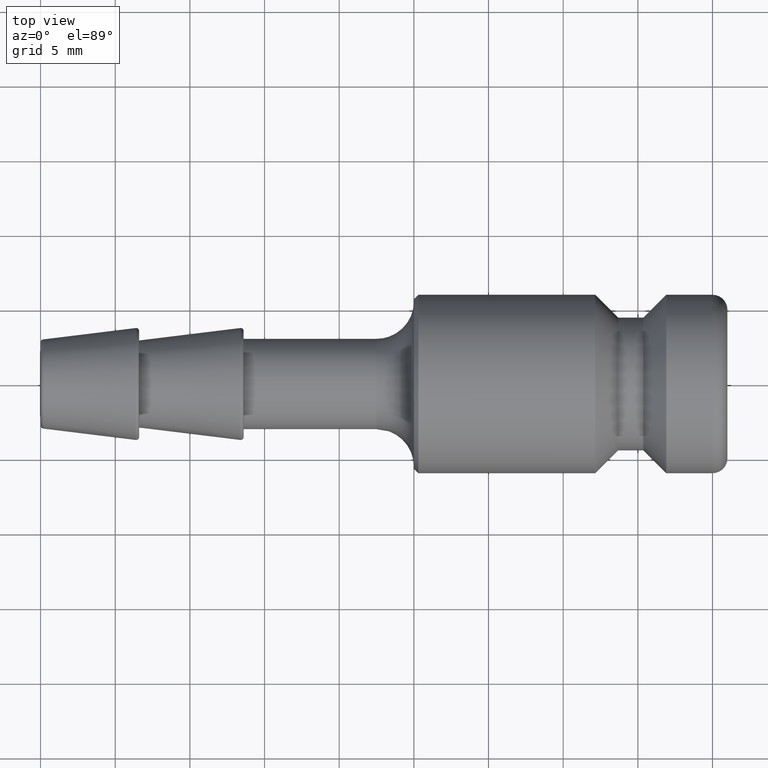
[diagram: clean part render]
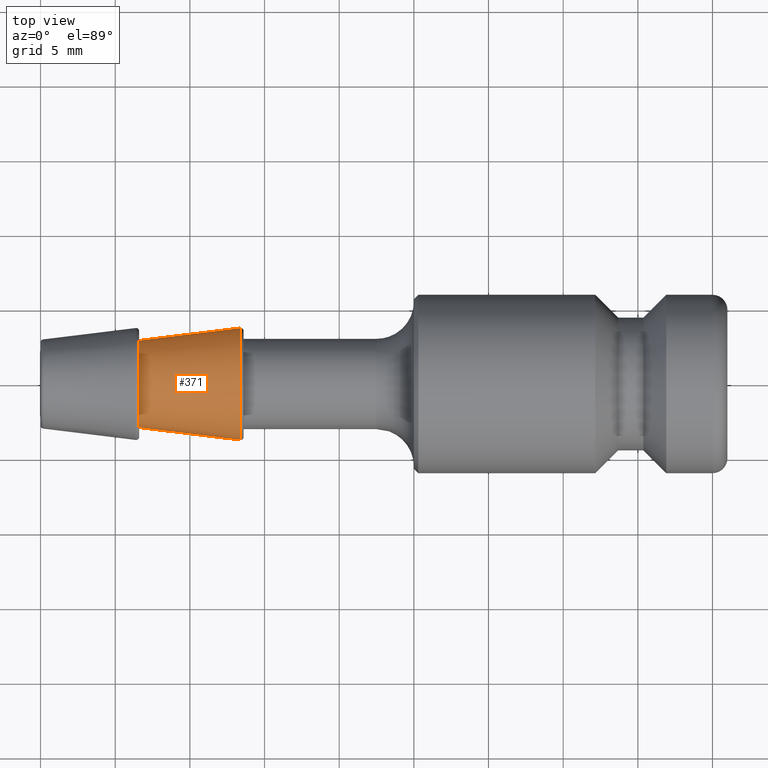
[diagram: same view with one face highlighted and labeled with its STEP entity id]
A machine part, top view. The second image highlights one B-rep face of the part: STEP entity #371.
In plain terms, the highlighted conical surface has half-angle 7 deg.
Its self-contained STEP definition (entity closure, byte-faithful):
#340=CARTESIAN_POINT('',(6.600000000000001,2.916566950952019,0.0));
#341=VERTEX_POINT('',#340);
#342=CARTESIAN_POINT('',(6.600000000000001,8.082669E-016,0.0));
#343=DIRECTION('',(1.0,0.0,0.0));
#344=DIRECTION('',(0.0,1.0,0.0));
#345=AXIS2_PLACEMENT_3D('',#342,#343,#344);
#346=CIRCLE('',#345,2.916566950952018);
#347=EDGE_CURVE('',#341,#341,#346,.T.);
#352=CARTESIAN_POINT('',(9.987813065659486,1.223154E-015,0.0));
#353=DIRECTION('',(1.0,1.224647E-016,0.0));
#354=DIRECTION('',(0.0,1.0,0.0));
#355=AXIS2_PLACEMENT_3D('',#352,#353,#354);
#356=CONICAL_SURFACE('',#355,3.332538090640141,7.000000000000005);
#357=CARTESIAN_POINT('',(13.375626131318972,3.748509230328266,0.0));
#358=VERTEX_POINT('',#357);
#359=CARTESIAN_POINT('',(13.375626131318972,1.638042E-015,0.0));
#360=DIRECTION('',(1.0,0.0,0.0));
#361=DIRECTION('',(0.0,1.0,0.0));
#362=AXIS2_PLACEMENT_3D('',#359,#360,#361);
#363=CIRCLE('',#362,3.748509230328265);
#364=EDGE_CURVE('',#358,#358,#363,.T.);
#365=ORIENTED_EDGE('',*,*,#364,.F.);
#366=EDGE_LOOP('',(#365));
#367=FACE_OUTER_BOUND('',#366,.T.);
#368=ORIENTED_EDGE('',*,*,#347,.T.);
#369=EDGE_LOOP('',(#368));
#370=FACE_BOUND('',#369,.T.);
#371=ADVANCED_FACE('',(#367,#370),#356,.T.);